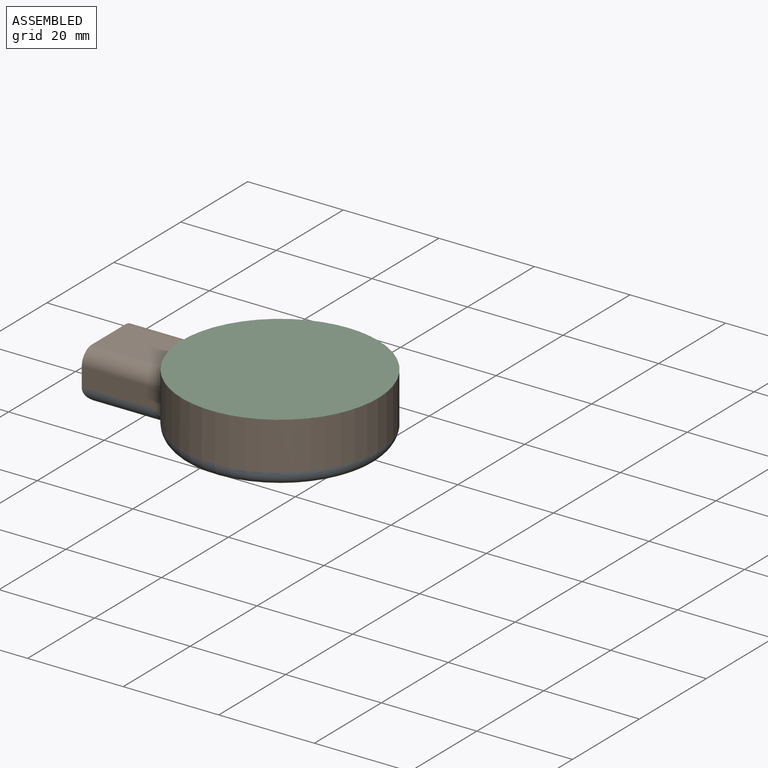
[diagram: assembled view]
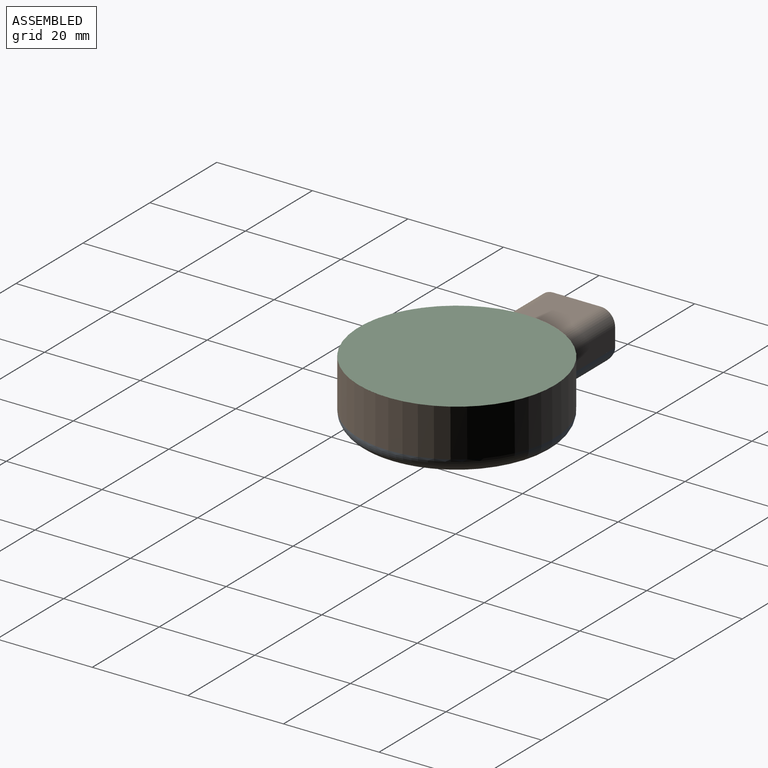
[diagram: assembled view, second angle]
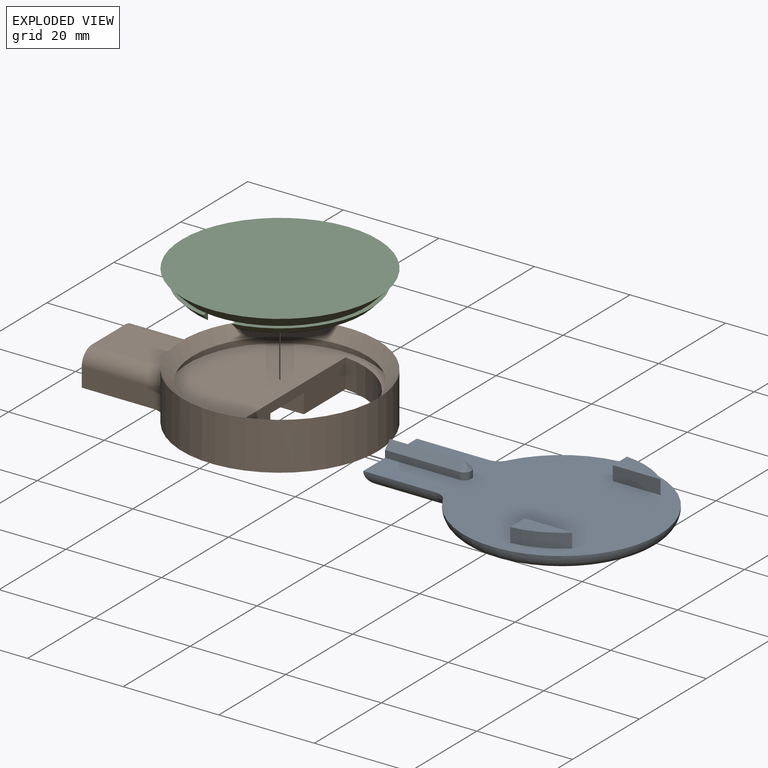
[diagram: exploded view]
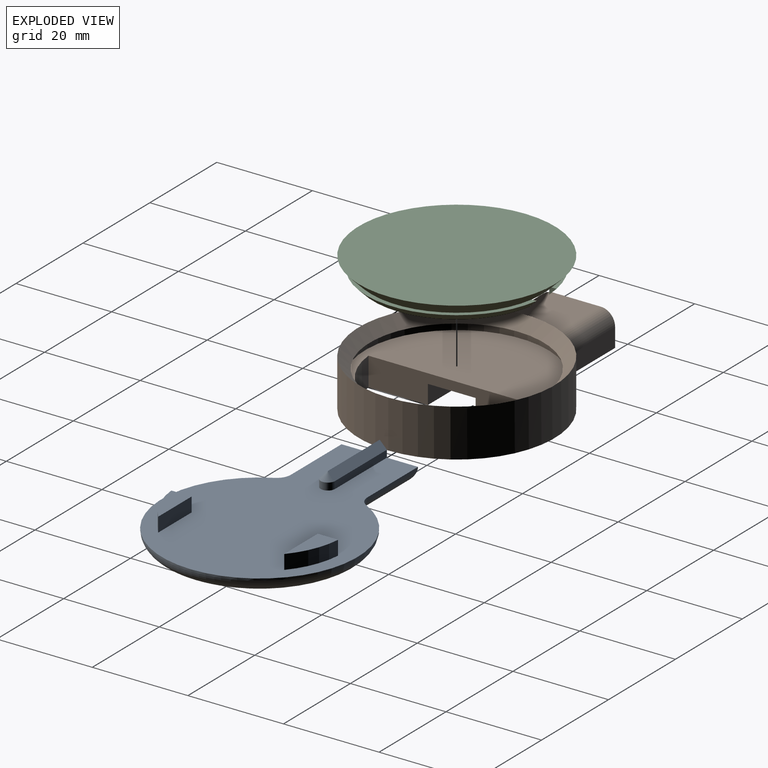
[diagram: exploded view, second angle]
ASSEMBLY  parts=3 mates=4
PART A: 23 faces, bbox 58.1x44.4x6 mm
  f0: plane 56.41x41.03mm, normal (0,0,-1), area 1470.9mm2, adj f2,f3,f4,f5,f6,f7,f8,f10
  f1: plane 50.37x35mm, normal (0,0,1), area 1118.3mm2, adj f2,f3,f4,f5
  f2: cylinder r=3mm len=19.1mm, axis (1,0,0), area 72.6mm2, adj f0,f1,f4,f21
  f3: torus R=17.5mm, axis (0,0,1), area 497mm2, adj f0,f1,f21,f22
  f4: cylinder r=3mm len=16mm, axis (0,1,0), area 65.1mm2, adj f0,f1,f2,f5,f15
  f5: cylinder r=3mm len=19.1mm, axis (-1,0,0), area 72.6mm2, adj f0,f1,f4,f22
  f6: plane 10x3mm, normal (0,-1,0), area 30mm2, adj f0,f7,f8,f9
  f7: plane 4.24x3mm, normal (-1,0,0), area 12.7mm2, adj f0,f6,f8,f9
  f8: cylinder r=17.5mm len=10mm, axis (0,0,1), area 33.1mm2, adj f0,f6,f7,f9
  f9: plane 10x4.24mm, normal (0,0,-1), area 27.5mm2, adj f6,f7,f8
  f10: plane 10x3mm, normal (0,1,0), area 30mm2, adj f0,f11,f12,f13
  f11: cylinder r=17.5mm len=10mm, axis (0,0,1), area 33.1mm2, adj f0,f10,f12,f13
  f12: plane 4.24x3mm, normal (-1,0,0), area 12.7mm2, adj f0,f10,f11,f13
  f13: plane 10x4.24mm, normal (0,0,-1), area 27.5mm2, adj f10,f11,f12
  f14: plane 15.5x1.5mm, normal (0,-1,0), area 23.2mm2, adj f0,f15,f17,f19
  f15: plane 3x3mm, normal (-1,0,0), area 6.8mm2, adj f4,f14,f16,f18,f19
  f16: plane 15.5x1.5mm, normal (0,1,0), area 23.2mm2, adj f0,f15,f17,f18
  f17: cylinder r=1.5mm len=3mm, axis (0,0,1), area 7.1mm2, adj f0,f14,f16,f20
  f18: plane 15.5x1.5mm, normal (0,0.71,-0.71), area 32.9mm2, adj f15,f16,f19,f20
  f19: plane 15.5x1.5mm, normal (0,-0.71,-0.71), area 32.9mm2, adj f14,f15,f18,f20
  f20: cone r=1.5mm half-angle=45deg, axis (0,0,1), area 5mm2, adj f17,f18,f19
  f21: bspline ~4.6x4mm, area 11mm2, adj f0,f2,f3
  f22: bspline ~4.6x4mm, area 11mm2, adj f0,f3,f5
PART B: 22 faces, bbox 56.4x41x12.1 mm
  f0: cylinder r=20.5mm len=41mm, axis (0,0,-1), area 1103.1mm2, adj f4,f5,f16,f17,f19,f20
  f1: plane 38.4x38.4mm, normal (0,0,1), area 729.5mm2, adj f2,f3,f7
  f2: plane 34.87x6mm, normal (1,0,0), area 169.2mm2, adj f1,f3,f4,f8,f9,f10
  f3: cylinder r=17.5mm len=34.87mm, axis (0,0,-1), area 311.8mm2, adj f1,f2,f4
  f4: plane 56.38x41mm, normal (0,0,-1), area 773.6mm2, adj f0,f2,f3,f8,f9,f11,f12,f13
  f5: cone r=20.5mm half-angle=45deg, axis (0,0,1), area 395.5mm2, adj f0,f6,f21
  f6: plane 38.4x38.4mm, normal (0,0,-1), area 117.5mm2, adj f5,f7
  f7: cylinder r=19.2mm len=38.4mm, axis (0,0,1), area 205.1mm2, adj f1,f6
  f8: plane 37.38x4mm, normal (0,-1,0), area 149.5mm2, adj f2,f4,f10,f11
  f9: plane 37.38x4mm, normal (0,1,0), area 149.5mm2, adj f2,f4,f10,f11
  f10: plane 37.38x10mm, normal (0,0,-1), area 373.8mm2, adj f2,f8,f9,f11
  f11: plane 16x7mm, normal (-1,0,0), area 68.1mm2, adj f4,f8,f9,f10,f12,f13,f14,f15
  f12: plane 15.11x4mm, normal (0,1,0), area 60.5mm2, adj f4,f11,f15,f16
  f13: plane 15.11x4mm, normal (0,-1,0), area 60.5mm2, adj f4,f11,f17,f18
  f14: plane 12.92x10mm, normal (0,0,1), area 125.6mm2, adj f11,f15,f18,f21
  f15: cylinder r=3mm len=15.11mm, axis (-1,0,0), area 66.9mm2, adj f11,f12,f14,f19
  f16: cylinder r=3mm len=4mm, axis (0,0,-1), area 13mm2, adj f0,f4,f12,f19
  f17: cylinder r=3mm len=4mm, axis (0,0,-1), area 13mm2, adj f0,f4,f13,f20
  f18: cylinder r=3mm len=15.11mm, axis (-1,0,0), area 66.9mm2, adj f11,f13,f14,f20
  f19: bspline ~7.21x5.89mm, area 25.7mm2, adj f0,f15,f16,f21
  f20: bspline ~7.16x6.38mm, area 25.7mm2, adj f0,f17,f18,f21
  f21: torus R=23.5mm, axis (0,0,1), area 43.6mm2, adj f5,f14,f19,f20
PART C: 14 faces, bbox 41x41x4 mm
  f0: cylinder r=17.5mm len=35mm, axis (0,0,-1), area 366.8mm2, adj f2,f3,f5,f8,f9,f10,f11,f12
  f1: plane 37.52x16mm, normal (0,0,-1), area 52.1mm2, adj f5,f6,f8,f13
  f2: cone r=19mm half-angle=45deg, axis (0,0,-1), area 108.8mm2, adj f0,f4,f9,f11
  f3: plane 35x35mm, normal (0,0,1), area 962.1mm2, adj f0
  f4: plane 37.52x16mm, normal (0,0,-1), area 52.1mm2, adj f2,f6,f9,f11
  f5: cone r=19mm half-angle=45deg, axis (0,0,-1), area 108.8mm2, adj f0,f1,f8,f13
  f6: cone r=20.5mm half-angle=45deg, axis (0,0,-1), area 427.6mm2, adj f1,f4,f7,f10,f12
  f7: plane 41x41mm, normal (0,0,-1), area 1320.3mm2, adj f6
  f8: plane 1.53x1.51mm, normal (-1,0,0), area 1.1mm2, adj f0,f1,f5,f10
  f9: plane 1.53x1.51mm, normal (1,0,0), area 1.1mm2, adj f0,f2,f4,f10
  f10: plane 6x0.76mm, normal (0,0,1), area 3mm2, adj f0,f6,f8,f9
  f11: plane 1.53x1.51mm, normal (1,0,0), area 1.1mm2, adj f0,f2,f4,f12
  f12: plane 6x0.76mm, normal (0,0,1), area 3mm2, adj f0,f6,f11,f13
  f13: plane 1.53x1.51mm, normal (-1,0,0), area 1.1mm2, adj f0,f1,f5,f12
PLACE A rot(axis=(1,0,0),180deg) t=(-63.85,110.92,-8.58)mm
PLACE B t=(-85.49,36.11,-8.58)mm
PLACE C rot(axis=(0,1,0),180deg) t=(5.51,36.11,1.42)mm
MATE revolute C.f0 <-> B.f0  axis (0,0,1) through (5.51,36.11,1.42)mm
MATE planar A.f12 <-> B.f2  axis (-1,0,0) through (7.01,51.42,-7.08)mm
MATE revolute A.f3 <-> B.f0  axis (0,0,1) through (5.51,36.11,-8.58)mm
MATE parallel C.f0 <-> B.f0  axis (0,0,1) through (5.51,36.11,0.17)mm
